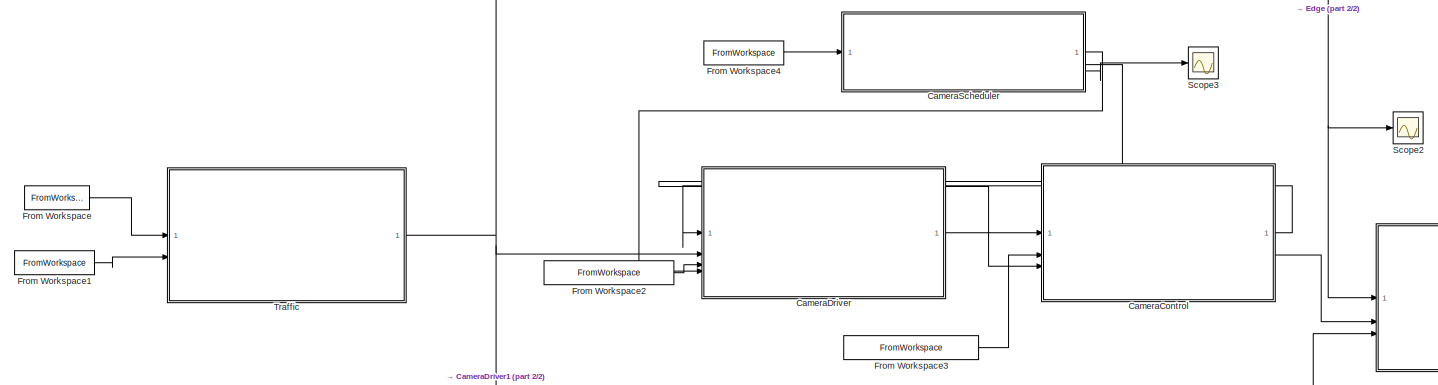
[diagram: root canvas - part 1/2, full width, top band]
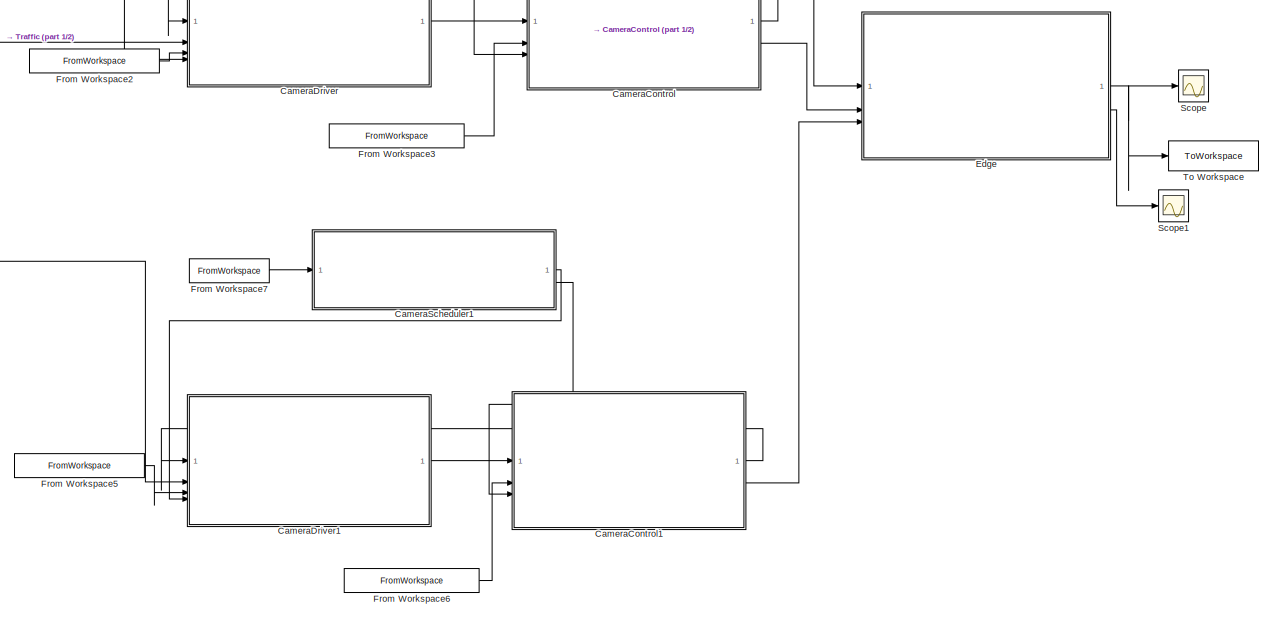
[diagram: root canvas - part 2/2, central region]
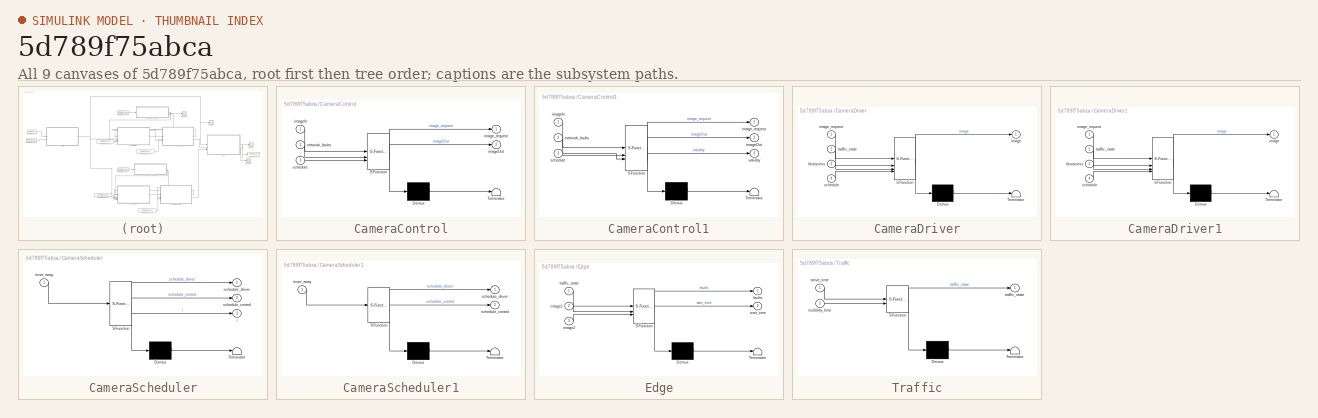
[diagram: thumbnail index - all 9 canvases of the model, root first then tree order]
MODEL slx_5d789f75abca
KIND model
CONFIG AbsTol = auto
CONFIG EnableMultiTasking = off
CONFIG FixedStep = auto
CONFIG MaxStep = auto
CONFIG MinStep = auto
CONFIG RelTol = 1e-3
CONFIG SampleTimeConstraint = Unconstrained
CONFIG SolverName = VariableStepAuto
CONFIG StartTime = 0.0
CONFIG StopTime = 3.0
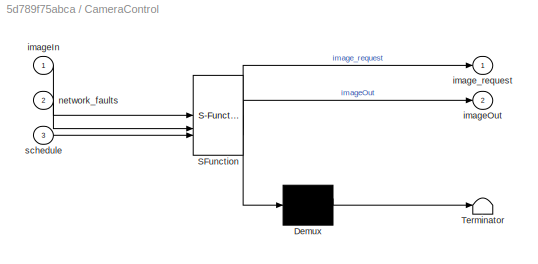
BLOCK [SubSystem] CameraControl
  ErrorFcn = Stateflow.Translate.translate
  PermitHierarchicalResolution = ExplicitOnly
  PortSchema = {"entries":[{"content":{"sides":[{"content":{"connectorIds":["In3","In1","In2"]},"type":"ConnectorPlacement.EquallySpacedRectSide","uuid":"ab620818-a51b-4a3c-9b00-600c4a6c30a0"},{"content":{"connectorIds":["Out1","Out2"],"side":"RIGHT"},"type":"ConnectorPlacement.EquallySpacedRectSide","uuid":"fd7d4612-1aa1-44dc-acf4-0ffdcf3f06ab"},{"content":{"side":"TOP"},"type":"ConnectorPlacement.EquallySpaced...<+241ch>
  SFBlockType = Chart
  TreatAsAtomicUnit = on
BLOCK [Demux] CameraControl/ Demux 
  Outputs = 1
BLOCK [S-Function] CameraControl/ SFunction 
  EnableBusSupport = on
  FunctionName = sf_sfun
  InputPortMessageModes = m,n,m
  OutputPortMessageModes = n,n,m
  PortCounts = [3 3]
  SFcnIsStateOwnerBlock = off
  SFunctionDeploymentMode = off
  Tag = Stateflow S-Function 2
BLOCK [Terminator] CameraControl/ Terminator 
BLOCK [Inport] CameraControl/imageIn
BLOCK [Outport] CameraControl/imageOut
  Port = 2
BLOCK [Outport] CameraControl/image_request
BLOCK [Inport] CameraControl/network_faults
  Port = 2
BLOCK [Inport] CameraControl/schedule
  Port = 3
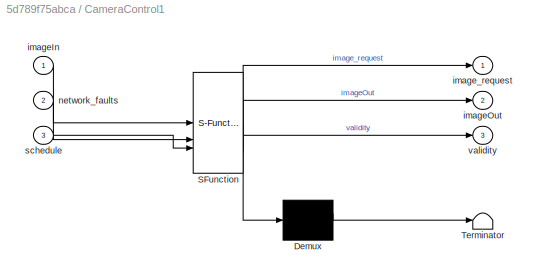
BLOCK [SubSystem] CameraControl1
  ErrorFcn = Stateflow.Translate.translate
  PermitHierarchicalResolution = ExplicitOnly
  PortSchema = {"entries":[{"content":{"sides":[{"content":{"connectorIds":["In3","In1","In2"]},"type":"ConnectorPlacement.EquallySpacedRectSide","uuid":"ab620818-a51b-4a3c-9b00-600c4a6c30a0"},{"content":{"connectorIds":["Out1","Out2","Out3"],"side":"RIGHT"},"type":"ConnectorPlacement.EquallySpacedRectSide","uuid":"fd7d4612-1aa1-44dc-acf4-0ffdcf3f06ab"},{"content":{"side":"TOP"},"type":"ConnectorPlacement.Equall...<+248ch>
  SFBlockType = Chart
  TreatAsAtomicUnit = on
BLOCK [Demux] CameraControl1/ Demux 
  Outputs = 1
BLOCK [S-Function] CameraControl1/ SFunction 
  EnableBusSupport = on
  FunctionName = sf_sfun
  InputPortMessageModes = m,n,m
  OutputPortMessageModes = n,n,m,n
  PortCounts = [3 4]
  SFcnIsStateOwnerBlock = off
  SFunctionDeploymentMode = off
  Tag = Stateflow S-Function 6
BLOCK [Terminator] CameraControl1/ Terminator 
BLOCK [Inport] CameraControl1/imageIn
BLOCK [Outport] CameraControl1/imageOut
  Port = 2
BLOCK [Outport] CameraControl1/image_request
BLOCK [Inport] CameraControl1/network_faults
  Port = 2
BLOCK [Inport] CameraControl1/schedule
  Port = 3
BLOCK [Outport] CameraControl1/validity
  Port = 3
BLOCK [SubSystem] CameraDriver
  ErrorFcn = Stateflow.Translate.translate
  PermitHierarchicalResolution = ExplicitOnly
  PortSchema = {"entries":[{"content":{"sides":[{"content":{"connectorIds":["In4","In1","In2","In3"]},"type":"ConnectorPlacement.EquallySpacedRectSide","uuid":"49bdffc0-8e15-4462-b991-b36534669558"},{"content":{"connectorIds":["Out1"],"side":"RIGHT"},"type":"ConnectorPlacement.EquallySpacedRectSide","uuid":"379950e5-a8e3-41fb-8f45-c3d731cfbd8a"},{"content":{"side":"TOP"},"type":"ConnectorPlacement.EquallySpacedR...<+240ch>
  SFBlockType = Chart
  TreatAsAtomicUnit = on
BLOCK [Demux] CameraDriver/ Demux 
  Outputs = 1
BLOCK [S-Function] CameraDriver/ SFunction 
  EnableBusSupport = on
  FunctionName = sf_sfun
  InputPortMessageModes = n,n,n,m
  OutputPortMessageModes = n,m
  PortCounts = [4 2]
  SFcnIsStateOwnerBlock = off
  SFunctionDeploymentMode = off
  Tag = Stateflow S-Function 1
BLOCK [Terminator] CameraDriver/ Terminator 
BLOCK [Inport] CameraDriver/blurryness
  Port = 3
BLOCK [Outport] CameraDriver/image
BLOCK [Inport] CameraDriver/image_request
BLOCK [Inport] CameraDriver/schedule
  Port = 4
BLOCK [Inport] CameraDriver/traffic_state
  Port = 2
BLOCK [SubSystem] CameraDriver1
  ErrorFcn = Stateflow.Translate.translate
  PermitHierarchicalResolution = ExplicitOnly
  PortSchema = {"entries":[{"content":{"sides":[{"content":{"connectorIds":["In4","In1","In2","In3"]},"type":"ConnectorPlacement.EquallySpacedRectSide","uuid":"49bdffc0-8e15-4462-b991-b36534669558"},{"content":{"connectorIds":["Out1"],"side":"RIGHT"},"type":"ConnectorPlacement.EquallySpacedRectSide","uuid":"379950e5-a8e3-41fb-8f45-c3d731cfbd8a"},{"content":{"side":"TOP"},"type":"ConnectorPlacement.EquallySpacedR...<+240ch>
  SFBlockType = Chart
  TreatAsAtomicUnit = on
BLOCK [Demux] CameraDriver1/ Demux 
  Outputs = 1
BLOCK [S-Function] CameraDriver1/ SFunction 
  EnableBusSupport = on
  FunctionName = sf_sfun
  InputPortMessageModes = n,n,n,m
  OutputPortMessageModes = n,m
  PortCounts = [4 2]
  SFcnIsStateOwnerBlock = off
  SFunctionDeploymentMode = off
  Tag = Stateflow S-Function 7
BLOCK [Terminator] CameraDriver1/ Terminator 
BLOCK [Inport] CameraDriver1/blurryness
  Port = 3
BLOCK [Outport] CameraDriver1/image
BLOCK [Inport] CameraDriver1/image_request
BLOCK [Inport] CameraDriver1/schedule
  Port = 4
BLOCK [Inport] CameraDriver1/traffic_state
  Port = 2
BLOCK [SubSystem] CameraScheduler
  ErrorFcn = Stateflow.Translate.translate
  PermitHierarchicalResolution = ExplicitOnly
  PortSchema = {"entries":[{"content":{"sides":[{"content":{"connectorIds":["In1"]},"type":"ConnectorPlacement.EquallySpacedRectSide","uuid":"228150a7-62a2-46d0-a1ac-a8e868d835b5"},{"content":{"connectorIds":["Out2","Out3","Out1"],"side":"RIGHT"},"type":"ConnectorPlacement.EquallySpacedRectSide","uuid":"cb1c6840-c5bf-4913-92c2-1c054d368f87"},{"content":{"side":"TOP"},"type":"ConnectorPlacement.EquallySpacedRectS...<+236ch>
  SFBlockType = Chart
  TreatAsAtomicUnit = on
BLOCK [Demux] CameraScheduler/ Demux 
  Outputs = 1
BLOCK [S-Function] CameraScheduler/ SFunction 
  EnableBusSupport = on
  FunctionName = sf_sfun
  OutputPortMessageModes = n,m,m,n
  PortCounts = [1 4]
  SFcnIsStateOwnerBlock = off
  SFunctionDeploymentMode = off
  Tag = Stateflow S-Function 5
BLOCK [Terminator] CameraScheduler/ Terminator 
BLOCK [Outport] CameraScheduler/i
  Port = 3
BLOCK [Outport] CameraScheduler/schedule_control
  Port = 2
BLOCK [Outport] CameraScheduler/schedule_driver
BLOCK [Inport] CameraScheduler/timer_array
BLOCK [SubSystem] CameraScheduler1
  ErrorFcn = Stateflow.Translate.translate
  PermitHierarchicalResolution = ExplicitOnly
  PortSchema = {"entries":[{"content":{"sides":[{"content":{"connectorIds":["In1"]},"type":"ConnectorPlacement.EquallySpacedRectSide","uuid":"335362b2-4c4f-40e6-baf0-d287f6971824"},{"content":{"connectorIds":["Out2","Out1"],"side":"RIGHT"},"type":"ConnectorPlacement.EquallySpacedRectSide","uuid":"7ee54d08-aa3e-4d6f-8253-6f749626479a"},{"content":{"side":"TOP"},"type":"ConnectorPlacement.EquallySpacedRectSide","u...<+229ch>
  SFBlockType = Chart
  TreatAsAtomicUnit = on
BLOCK [Demux] CameraScheduler1/ Demux 
  Outputs = 1
BLOCK [S-Function] CameraScheduler1/ SFunction 
  EnableBusSupport = on
  FunctionName = sf_sfun
  OutputPortMessageModes = n,m,m
  PortCounts = [1 3]
  SFcnIsStateOwnerBlock = off
  SFunctionDeploymentMode = off
  Tag = Stateflow S-Function 8
BLOCK [Terminator] CameraScheduler1/ Terminator 
BLOCK [Outport] CameraScheduler1/schedule_control
  Port = 2
BLOCK [Outport] CameraScheduler1/schedule_driver
BLOCK [Inport] CameraScheduler1/timer_array
BLOCK [SubSystem] Edge
  ErrorFcn = Stateflow.Translate.translate
  PermitHierarchicalResolution = ExplicitOnly
  SFBlockType = Chart
  TreatAsAtomicUnit = on
BLOCK [Demux] Edge/ Demux 
  Outputs = 1
BLOCK [S-Function] Edge/ SFunction 
  EnableBusSupport = on
  FunctionName = sf_sfun
  InputPortMessageModes = n,m,m
  PortCounts = [3 3]
  SFcnIsStateOwnerBlock = off
  SFunctionDeploymentMode = off
  Tag = Stateflow S-Function 4
BLOCK [Terminator] Edge/ Terminator 
BLOCK [Outport] Edge/faults
BLOCK [Inport] Edge/image1
  Port = 2
BLOCK [Inport] Edge/image2
  Port = 3
BLOCK [Inport] Edge/traffic_state
BLOCK [Outport] Edge/wait_time
  Port = 2
BLOCK [FromWorkspace] From Workspace
  Interpolate = off
  OutDataTypeStr = double
  OutputAfterFinalValue = Holding final value
  SampleTime = -1
  VariableName = arrive_time
  ZeroCross = off
BLOCK [FromWorkspace] From Workspace1
  Interpolate = off
  OutDataTypeStr = double
  OutputAfterFinalValue = Holding final value
  SampleTime = -1
  VariableName = visibility_time
  ZeroCross = off
BLOCK [FromWorkspace] From Workspace2
  VariableName = blurryness_array_1
BLOCK [FromWorkspace] From Workspace3
  VariableName = networkloss_array_1
BLOCK [FromWorkspace] From Workspace4
  VariableName = timer_array_1
BLOCK [FromWorkspace] From Workspace5
  VariableName = blurryness_array_2
BLOCK [FromWorkspace] From Workspace6
  VariableName = networkloss_array_2
BLOCK [FromWorkspace] From Workspace7
  VariableName = timer_array_2
BLOCK [Scope] Scope
  Floating = off
  NumInputPorts = 1
  ScopeSpecificationString = Simulink.scopes.TimeScopeBlockCfg('CurrentConfiguration', extmgr.ConfigurationSet(extmgr.Configuration('Core','General UI',true),extmgr.Configuration('Core','Source UI',true),extmgr.Configuration('Sources','WiredSimulink',true),extmgr.Configuration('Visuals','Time Domain',true,'SerializedDisplays',{struct('MinYLimReal','-1.00000','MaxYLimReal','1.00000','YLabelReal','','MinYLimMag','0.00000','MaxY...<+1714ch>
BLOCK [Scope] Scope1
  Floating = off
  NumInputPorts = 1
  ScopeSpecificationString = Simulink.scopes.TimeScopeBlockCfg('CurrentConfiguration', extmgr.ConfigurationSet(extmgr.Configuration('Core','General UI',true),extmgr.Configuration('Core','Source UI',true),extmgr.Configuration('Sources','WiredSimulink',true,'DataLoggingVariableName','ScopeData1'),extmgr.Configuration('Visuals','Time Domain',true,'SerializedDisplays',{struct('MinYLimReal','-66.51186','MaxYLimReal','598.6067','YL...<+1775ch>
BLOCK [Scope] Scope2
  Floating = off
  NumInputPorts = 1
  ScopeSpecificationString = Simulink.scopes.TimeScopeBlockCfg('CurrentConfiguration', extmgr.ConfigurationSet(extmgr.Configuration('Core','General UI',true),extmgr.Configuration('Core','Source UI',true),extmgr.Configuration('Sources','WiredSimulink',true,'DataLoggingVariableName','ScopeData2'),extmgr.Configuration('Visuals','Time Domain',true,'SerializedDisplays',{struct('MinYLimReal','-0.125','MaxYLimReal','1.125','YLabelRe...<+1750ch>
BLOCK [Scope] Scope3
  Floating = off
  NumInputPorts = 1
  ScopeSpecificationString = Simulink.scopes.TimeScopeBlockCfg('CurrentConfiguration', extmgr.ConfigurationSet(extmgr.Configuration('Core','General UI',true),extmgr.Configuration('Core','Source UI',true),extmgr.Configuration('Sources','WiredSimulink',true,'DataLoggingVariableName','ScopeData3'),extmgr.Configuration('Visuals','Time Domain',true,'SerializedDisplays',{struct('MinYLimReal','1.00000','MaxYLimReal','3.00000','YLabe...<+1757ch>
BLOCK [ToWorkspace] To Workspace
  FixptAsFi = on
  MaxDataPoints = inf
  SampleTime = -1
  SaveFormat = Timeseries
  VariableName = faults
BLOCK [SubSystem] Traffic
  ErrorFcn = Stateflow.Translate.translate
  PermitHierarchicalResolution = ExplicitOnly
  SFBlockType = Chart
  TreatAsAtomicUnit = on
BLOCK [Demux] Traffic/ Demux 
  Outputs = 1
BLOCK [S-Function] Traffic/ SFunction 
  EnableBusSupport = on
  FunctionName = sf_sfun
  PortCounts = [2 2]
  SFcnIsStateOwnerBlock = off
  SFunctionDeploymentMode = off
  Tag = Stateflow S-Function 3
BLOCK [Terminator] Traffic/ Terminator 
BLOCK [Inport] Traffic/arrive_time
BLOCK [Outport] Traffic/traffic_state
BLOCK [Inport] Traffic/visibility_time
  Port = 2
LINE CameraControl1:1 -> CameraDriver1:1
LINE CameraControl1:2 -> Edge:3
LINE CameraControl:1 -> CameraDriver:1
LINE CameraControl:2 -> Edge:2
LINE CameraDriver1:1 -> CameraControl1:1
LINE CameraDriver:1 -> CameraControl:1
LINE CameraScheduler1:1 -> CameraDriver1:4
LINE CameraScheduler1:2 -> CameraControl1:3
LINE CameraScheduler:1 -> CameraDriver:4
LINE CameraScheduler:2 -> CameraControl:3
LINE CameraScheduler:3 -> Scope3:1
NET Edge:1 -> Scope:1, To Workspace:1
LINE Edge:2 -> Scope1:1
LINE From Workspace1:1 -> Traffic:2
LINE From Workspace2:1 -> CameraDriver:3
LINE From Workspace3:1 -> CameraControl:2
LINE From Workspace4:1 -> CameraScheduler:1
LINE From Workspace5:1 -> CameraDriver1:3
LINE From Workspace6:1 -> CameraControl1:2
LINE From Workspace7:1 -> CameraScheduler1:1
LINE From Workspace:1 -> Traffic:1
NET Traffic:1 -> CameraDriver1:2, CameraDriver:2, Edge:1, Scope2:1
note: NET lines group one-source signal fan-out (src -> all destinations, sorted); 1:1 wires keep LINE
CHART CameraScheduler states=2 transitions=3
  STATE_LABEL 'Main\nentry:\ndt=timer_array[i];'
  STATE_LABEL 'CascadeState'
CHART CameraControl1 states=6 transitions=9
  STATE_LABEL 'Operation'
  STATE_LABEL 'RequestHangling'
  STATE_LABEL '{image_request=1;}'
  STATE_LABEL 'Operation1'
  STATE_LABEL 'schedule{image_request=1;}'
  STATE_LABEL 'ImageMessaging'
  STATE_LABEL 'Operation2\nentry:\nvalidity=isvalid(imageIn);'
  STATE_LABEL '{i=1;}'
  STATE_LABEL '[i>0]\n{receive(imageIn);i = i + 1;\nimageOut.data=imageIn.data;\nsend(imageOut);}'
  STATE_LABEL '{receive(imageIn);i = i + 1;}'
  STATE_LABEL 'schedule'
  STATE_LABEL '{i = i + 1;receive(imageIn);}'
  STATE_LABEL '[network_faults(i)==0]'
  STATE_LABEL 'RequestHangling'
  STATE_LABEL '{image_request=1;}'
  STATE_LABEL 'Operation1'
  STATE_LABEL 'schedule{image_request=1;}'
  STATE_LABEL '{image_request=1;}'
  STATE_LABEL 'Operation1'
  STATE_LABEL 'ImageMessaging'
  STATE_LABEL 'Operation2\nentry:\nvalidity=isvalid(imageIn);'
  STATE_LABEL '{i=1;}'
  STATE_LABEL '[i>0]\n{receive(imageIn);i = i + 1;\nimageOut.data=imageIn.data;\nsend(imageOut);}'
  STATE_LABEL '{receive(imageIn);i = i + 1;}'
  STATE_LABEL 'schedule'
  STATE_LABEL '{i = i + 1;receive(imageIn);}'
  STATE_LABEL '[network_faults(i)==0]'
  STATE_LABEL 'Operation2\nentry:\nvalidity=isvalid(imageIn);'
CHART CameraDriver1 states=6 transitions=7
  STATE_LABEL 'Operation'
  STATE_LABEL 'CarVisibility'
  STATE_LABEL 'NoCar\nentry: car=0;'
  STATE_LABEL 'Car\nentry: car=1;'
  STATE_LABEL '[traffic_state==1]'
  STATE_LABEL '[traffic_state==0]'
  STATE_LABEL 'DriverOperation'
  STATE_LABEL 'Main'
  STATE_LABEL '{i=1;}'
  STATE_LABEL 'schedule'
  STATE_LABEL '[(car==1)&&(blurryness(i)==1)]\n{image.data=1;send(image);i = i + 1;}'
  STATE_LABEL '{image.data=0;\nsend(image);i = i + 1;}'
  STATE_LABEL 'CarVisibility'
  STATE_LABEL 'NoCar\nentry: car=0;'
  STATE_LABEL 'Car\nentry: car=1;'
  STATE_LABEL '[traffic_state==1]'
  STATE_LABEL '[traffic_state==0]'
  STATE_LABEL 'NoCar\nentry: car=0;'
  STATE_LABEL 'Car\nentry: car=1;'
  STATE_LABEL 'DriverOperation'
  STATE_LABEL 'Main'
  STATE_LABEL '{i=1;}'
  STATE_LABEL 'schedule'
  STATE_LABEL '[(car==1)&&(blurryness(i)==1)]\n{image.data=1;send(image);i = i + 1;}'
  STATE_LABEL '{image.data=0;\nsend(image);i = i + 1;}'
  STATE_LABEL 'Main'
CHART CameraScheduler1 states=2 transitions=3
  STATE_LABEL 'Main\nentry:\ndt=timer_array[i];'
  STATE_LABEL 'CascadeState'
CHART CameraDriver states=6 transitions=7
  STATE_LABEL 'Operation'
  STATE_LABEL 'CarVisibility'
  STATE_LABEL 'NoCar\nentry: car=0;'
  STATE_LABEL 'Car\nentry: car=1;'
  STATE_LABEL '[traffic_state==1]'
  STATE_LABEL '[traffic_state==0]'
  STATE_LABEL 'DriverOperation'
  STATE_LABEL 'Main'
  STATE_LABEL '{i=1;}'
  STATE_LABEL 'schedule'
  STATE_LABEL '{image.data=0;\nsend(image);i = i + 1;}'
  STATE_LABEL '[(car==1)&&(blurryness(i)==1)]\n{image.data=1;i = i + 1;send(image);}'
  STATE_LABEL 'CarVisibility'
  STATE_LABEL 'NoCar\nentry: car=0;'
  STATE_LABEL 'Car\nentry: car=1;'
  STATE_LABEL '[traffic_state==1]'
  STATE_LABEL '[traffic_state==0]'
  STATE_LABEL 'NoCar\nentry: car=0;'
  STATE_LABEL 'Car\nentry: car=1;'
  STATE_LABEL 'DriverOperation'
  STATE_LABEL 'Main'
  STATE_LABEL '{i=1;}'
  STATE_LABEL 'schedule'
  STATE_LABEL '{image.data=0;\nsend(image);i = i + 1;}'
  STATE_LABEL '[(car==1)&&(blurryness(i)==1)]\n{image.data=1;i = i + 1;send(image);}'
  STATE_LABEL 'Main'
CHART CameraControl states=5 transitions=9
  STATE_LABEL 'Operation'
  STATE_LABEL 'RequestHangling'
  STATE_LABEL 'Operation1'
  STATE_LABEL '{image_request=1;}'
  STATE_LABEL 'schedule{image_request=1;}'
  STATE_LABEL 'ImageMessaging'
  STATE_LABEL 'Operation2\nentry:\nvalidity=isvalid(imageIn);\n'
  STATE_LABEL '{i=1;}'
  STATE_LABEL '[i>0]\n{receive(imageIn);i = i + 1;\nimageOut.data=imageIn.data\nsend(imageOut);}'
  STATE_LABEL '{i = i + 1;receive(imageIn);}'
  STATE_LABEL '[network_faults(i)==0]'
  STATE_LABEL '{receive(imageIn);i = i + 1;}'
  STATE_LABEL 'schedule'
  STATE_LABEL 'RequestHangling'
  STATE_LABEL 'Operation1'
  STATE_LABEL '{image_request=1;}'
  STATE_LABEL 'schedule{image_request=1;}'
  STATE_LABEL 'Operation1'
  STATE_LABEL 'ImageMessaging'
  STATE_LABEL 'Operation2\nentry:\nvalidity=isvalid(imageIn);\n'
  STATE_LABEL '{i=1;}'
  STATE_LABEL '[i>0]\n{receive(imageIn);i = i + 1;\nimageOut.data=imageIn.data\nsend(imageOut);}'
  STATE_LABEL '{i = i + 1;receive(imageIn);}'
  STATE_LABEL '[network_faults(i)==0]'
  STATE_LABEL '{receive(imageIn);i = i + 1;}'
  STATE_LABEL 'schedule'
  STATE_LABEL 'Operation2\nentry:\nvalidity=isvalid(imageIn);\n'
CHART Traffic states=3 transitions=3
  STATE_LABEL 'Nocar\nentry:\ntraffic_state=0;\n'
  STATE_LABEL 'Car\nentry:\ntraffic_state=1;\n'
  STATE_LABEL 'Nocar1\nentry:\ntraffic_state=0;'
CHART Edge states=3 transitions=14
  STATE_LABEL 'Waiting'
  STATE_LABEL 'NotRecognized\nwait_time=elapsed(msec);\n'
  STATE_LABEL 'Recognized'
CHART  states=0 transitions=0
CHART  states=0 transitions=0
CHART  states=0 transitions=0
CHART  states=0 transitions=0
CHART  states=0 transitions=0
CHART  states=0 transitions=0
CHART  states=0 transitions=0
CHART  states=0 transitions=0
